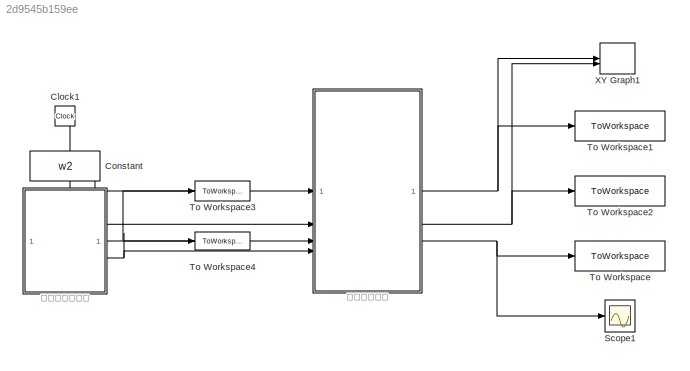
MODEL slx_2d9545b159ee
KIND model
CONFIG AbsTol = auto
CONFIG EnableMultiTasking = off
CONFIG FixedStep = 0.01
CONFIG MaxStep = auto
CONFIG MinStep = auto
CONFIG RelTol = 1e-3
CONFIG SampleTimeConstraint = Unconstrained
CONFIG SolverName = FixedStepAuto
CONFIG StartTime = 0.0
CONFIG StopTime = 200
BLOCK [Clock] Clock1
BLOCK [Constant] Constant
  Value = w2
BLOCK [Scope] Scope1
  Floating = off
  NumInputPorts = 1
  ScopeSpecificationString = Simulink.scopes.TimeScopeBlockCfg('CurrentConfiguration', extmgr.ConfigurationSet(extmgr.Configuration('Core','General UI',true),extmgr.Configuration('Core','Source UI',true),extmgr.Configuration('Sources','WiredSimulink',true),extmgr.Configuration('Visuals','Time Domain',true,'SerializedDisplays',{struct('MinYLimReal','-4.50593','MaxYLimReal','40.56234','YLabelReal','','MinYLimMag','0.00000','Max...<+1413ch>
BLOCK [ToWorkspace] To Workspace
  FixptAsFi = on
  MaxDataPoints = inf
  SampleTime = -1
  SaveFormat = Timeseries
  VariableName = dis
BLOCK [ToWorkspace] To Workspace1
  FixptAsFi = on
  MaxDataPoints = inf
  SampleTime = -1
  SaveFormat = Timeseries
  VariableName = x
BLOCK [ToWorkspace] To Workspace2
  FixptAsFi = on
  MaxDataPoints = inf
  SampleTime = -1
  SaveFormat = Timeseries
  VariableName = y
BLOCK [ToWorkspace] To Workspace3
  FixptAsFi = on
  MaxDataPoints = inf
  SampleTime = -1
  SaveFormat = Timeseries
  VariableName = X
BLOCK [ToWorkspace] To Workspace4
  FixptAsFi = on
  MaxDataPoints = inf
  SampleTime = -1
  SaveFormat = Timeseries
  VariableName = Y
BLOCK [Record] XY Graph1
  CompatibilityTag = XY
  FileSettingsInternal = {"entries":[{"content":{"excelSettings":{"content":{},"type":"Streamout.ExcelSettings"}},"type":"Streamout.FileSettingStorage","uuid":""}],"packageUris":["http:\/\/schema.mathworks.com\/mf0\/streamout_blocks\/R2020a"],"version":"1.0"}
  Layout = [1 1]
  SignalsInternal = {"entries":[{"content":{"signals":[{"content":{"blockPath":[],"dimensions":[1],"domain":"","lineColor":"#a2142f","plots":[1],"port":1,"sid":[""],"signalID":51729,"signalName":"导弹运行轨迹:1"},"type":"RecordBlkView.Signal","uuid":""},{"content":{"blockPath":[],"dimensions":[1],"domain":"","lineColor":"#139fff","plots":[1],"port":2,"sid":[""],"signalID":51733,"signalName":"导弹运行轨迹:2"},"type":"RecordBlkVie...<+166ch>
  VisualizationBindings = {"xyplotplugin":{"info":[{"series":[{"bindingParametersList":[{"parameter":"X-Axis","signalID":51729,"signalName":"导弹运行轨迹:1"},{"parameter":"Y-Axis","signalID":51733,"signalName":"导弹运行轨迹:2"}],"seriesID":56045}],"subplotID":1}]}}
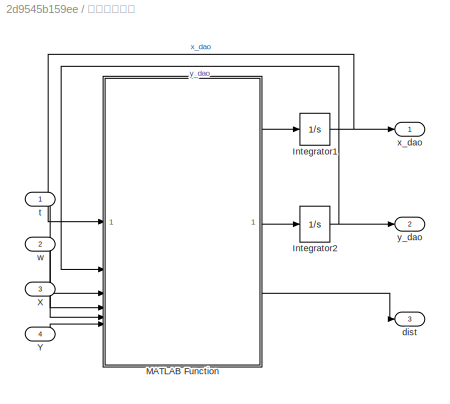
BLOCK [SubSystem] 导弹运行轨迹
BLOCK [Integrator] 导弹运行轨迹/Integrator1
BLOCK [Integrator] 导弹运行轨迹/Integrator2
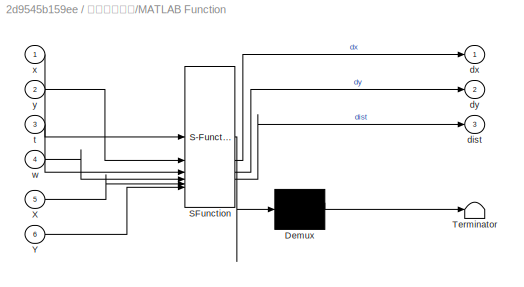
BLOCK [SubSystem] 导弹运行轨迹/MATLAB Function
  ErrorFcn = Stateflow.Translate.translate
  PermitHierarchicalResolution = ExplicitOnly
  SFBlockType = MATLAB Function
  TreatAsAtomicUnit = on
BLOCK [Demux] 导弹运行轨迹/MATLAB Function/ Demux 
  Outputs = 1
BLOCK [S-Function] 导弹运行轨迹/MATLAB Function/ SFunction 
  EnableBusSupport = on
  FunctionName = sf_sfun
  PortCounts = [6 4]
  SFcnIsStateOwnerBlock = off
  SFunctionDeploymentMode = off
  Tag = Stateflow S-Function 2
BLOCK [Terminator] 导弹运行轨迹/MATLAB Function/ Terminator 
BLOCK [Inport] 导弹运行轨迹/MATLAB Function/X
  Port = 5
BLOCK [Inport] 导弹运行轨迹/MATLAB Function/Y
  Port = 6
BLOCK [Outport] 导弹运行轨迹/MATLAB Function/dist
  Port = 3
BLOCK [Outport] 导弹运行轨迹/MATLAB Function/dx
BLOCK [Outport] 导弹运行轨迹/MATLAB Function/dy
  Port = 2
BLOCK [Inport] 导弹运行轨迹/MATLAB Function/t
  Port = 3
BLOCK [Inport] 导弹运行轨迹/MATLAB Function/w
  Port = 4
BLOCK [Inport] 导弹运行轨迹/MATLAB Function/x
BLOCK [Inport] 导弹运行轨迹/MATLAB Function/y
  Port = 2
BLOCK [Inport] 导弹运行轨迹/X
  Port = 3
BLOCK [Inport] 导弹运行轨迹/Y
  Port = 4
BLOCK [Outport] 导弹运行轨迹/dist
  Port = 3
BLOCK [Inport] 导弹运行轨迹/t
BLOCK [Inport] 导弹运行轨迹/w
  Port = 2
BLOCK [Outport] 导弹运行轨迹/x_dao
BLOCK [Outport] 导弹运行轨迹/y_dao
  Port = 2
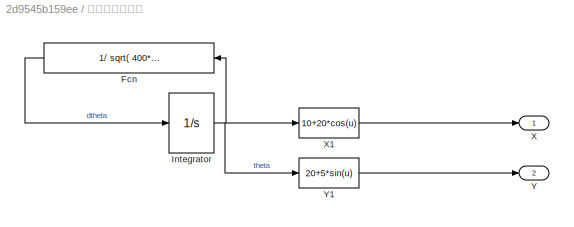
BLOCK [SubSystem] 飞行器运行轨迹
BLOCK [Fcn] 飞行器运行轨迹/Fcn
  Expr = 1/ sqrt( 400*sin(u)^2 + 25*cos(u)^2 )
BLOCK [Integrator] 飞行器运行轨迹/Integrator
BLOCK [Outport] 飞行器运行轨迹/X
BLOCK [Fcn] 飞行器运行轨迹/X1
  Expr = 10+20*cos(u)
BLOCK [Outport] 飞行器运行轨迹/Y
  Port = 2
BLOCK [Fcn] 飞行器运行轨迹/Y1
  Expr = 20+5*sin(u)
LINE Clock1:1 -> 导弹运行轨迹:1
LINE Constant:1 -> 导弹运行轨迹:2
NET 导弹运行轨迹/Integrator1:1 -> 导弹运行轨迹/MATLAB Function:1, 导弹运行轨迹/x_dao:1
NET 导弹运行轨迹/Integrator2:1 -> 导弹运行轨迹/MATLAB Function:2, 导弹运行轨迹/y_dao:1
LINE 导弹运行轨迹/MATLAB Function:1 -> 导弹运行轨迹/Integrator1:1
LINE 导弹运行轨迹/MATLAB Function:2 -> 导弹运行轨迹/Integrator2:1
LINE 导弹运行轨迹/MATLAB Function:3 -> 导弹运行轨迹/dist:1
LINE 导弹运行轨迹/X:1 -> 导弹运行轨迹/MATLAB Function:5
LINE 导弹运行轨迹/Y:1 -> 导弹运行轨迹/MATLAB Function:6
LINE 导弹运行轨迹/t:1 -> 导弹运行轨迹/MATLAB Function:3
LINE 导弹运行轨迹/w:1 -> 导弹运行轨迹/MATLAB Function:4
NET 导弹运行轨迹:1 -> To Workspace1:1, XY Graph1:1
NET 导弹运行轨迹:2 -> To Workspace2:1, XY Graph1:2
NET 导弹运行轨迹:3 -> Scope1:1, To Workspace:1
LINE 飞行器运行轨迹/Fcn:1 -> 飞行器运行轨迹/Integrator:1
NET 飞行器运行轨迹/Integrator:1 -> 飞行器运行轨迹/Fcn:1, 飞行器运行轨迹/X1:1, 飞行器运行轨迹/Y1:1
LINE 飞行器运行轨迹/X1:1 -> 飞行器运行轨迹/X:1
LINE 飞行器运行轨迹/Y1:1 -> 飞行器运行轨迹/Y:1
NET 飞行器运行轨迹:1 -> To Workspace3:1, 导弹运行轨迹:3
NET 飞行器运行轨迹:2 -> To Workspace4:1, 导弹运行轨迹:4
note: NET lines group one-source signal fan-out (src -> all destinations, sorted); 1:1 wires keep LINE
CHART 导弹运行轨迹/MATLAB Function states=1 transitions=1
  STATE_LABEL 'eML_blk_kernel()'
  STATE_LABEL 'SCRIPT:\nfunction [dx,dy,dist] = fcn(x,y,t,w,X,Y)\nx_fei = X;\ny_fei = Y;\ndist = sqrt( (x_fei - x)^2 + (y_fei - y)^2 );\ndx = w * (x_fei - x) / dist;\ndy = w * (y_fei - y) / dist;\n\n'
CHART  states=0 transitions=0
